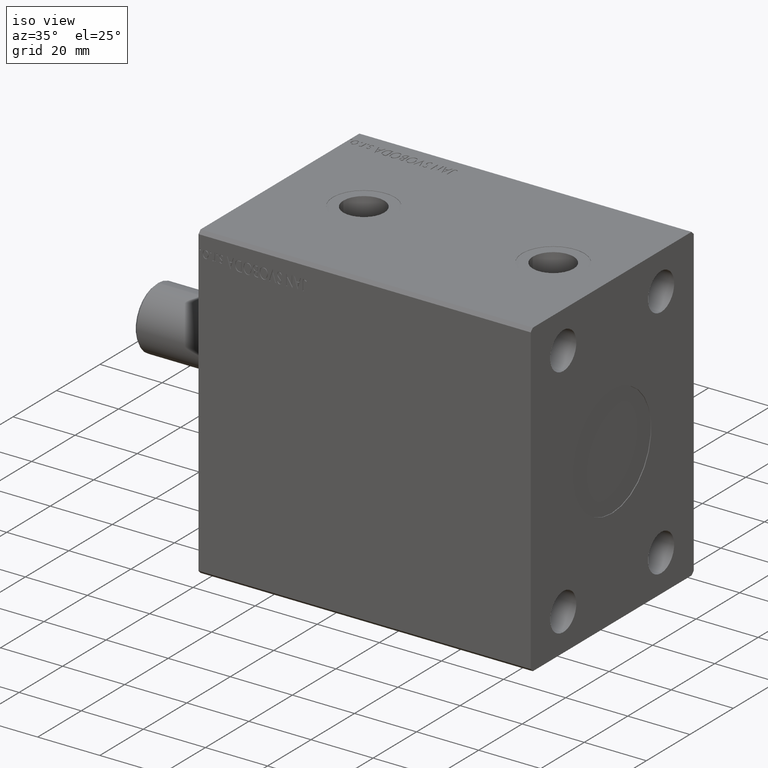
[diagram: clean part render]
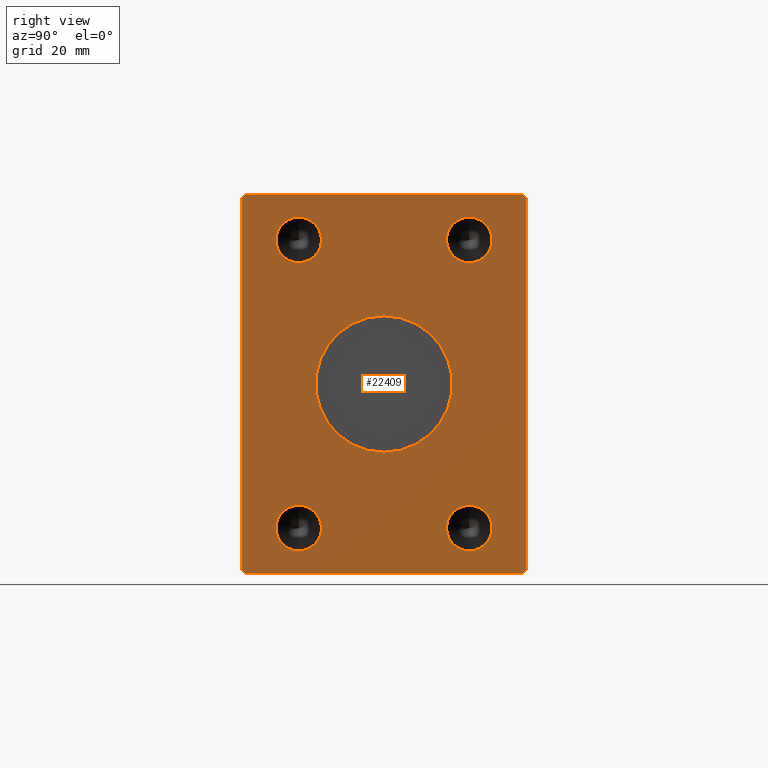
[diagram: tour spotlight — one face highlighted and labeled with its STEP entity id]
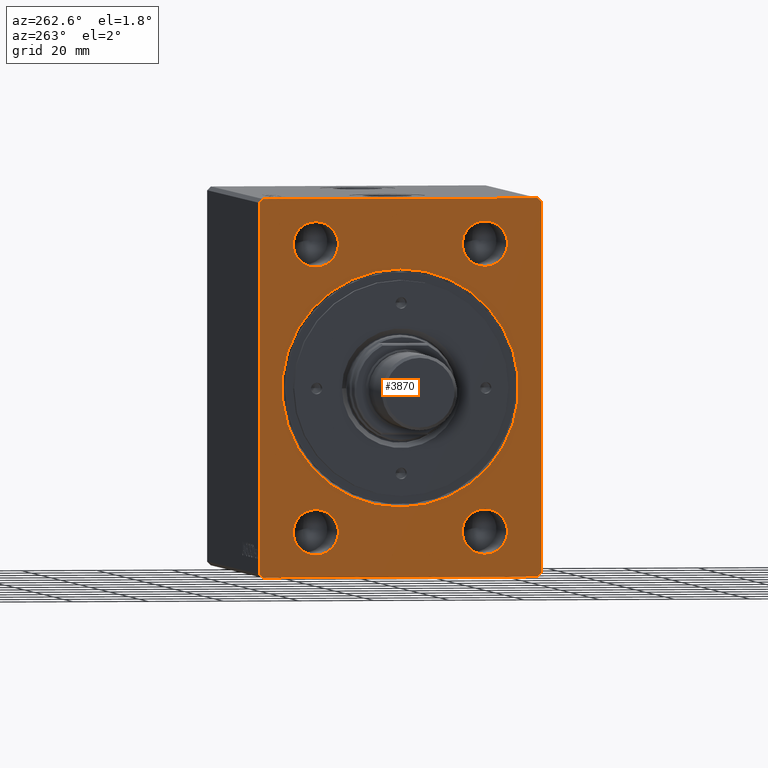
[diagram: tour spotlight — one face highlighted and labeled with its STEP entity id]
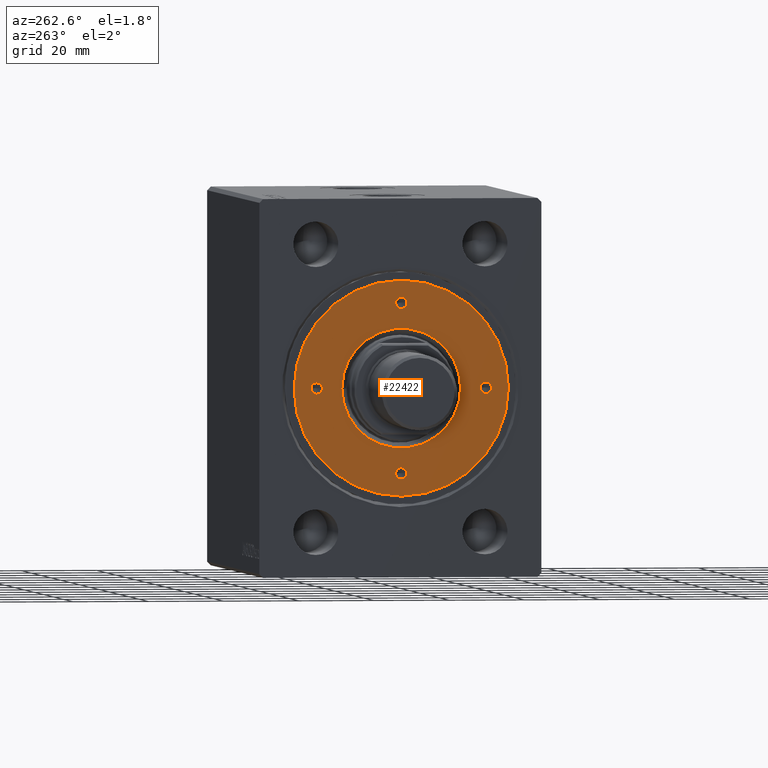
[diagram: tour spotlight — one face highlighted and labeled with its STEP entity id]
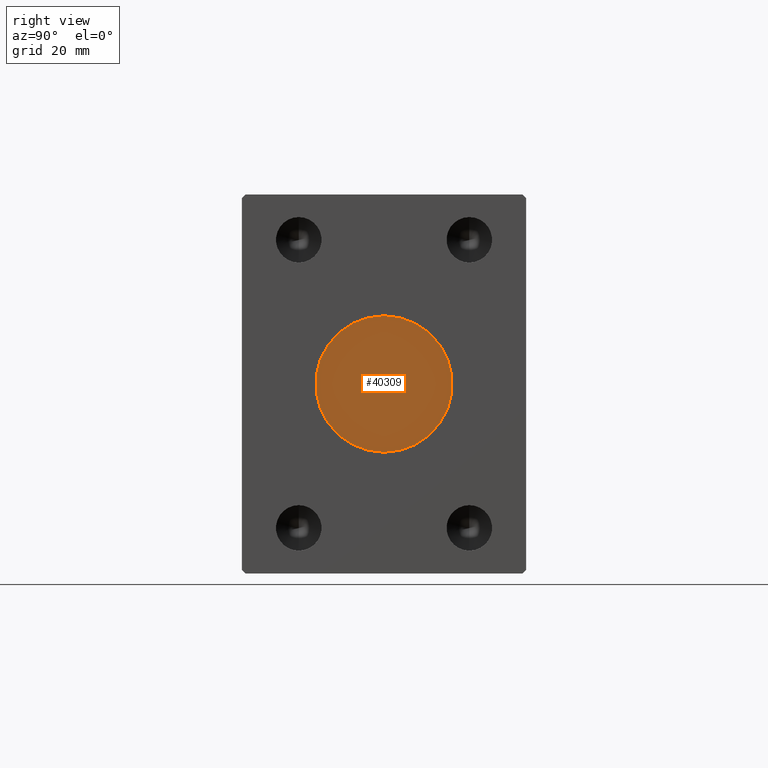
[diagram: tour spotlight — one face highlighted and labeled with its STEP entity id]
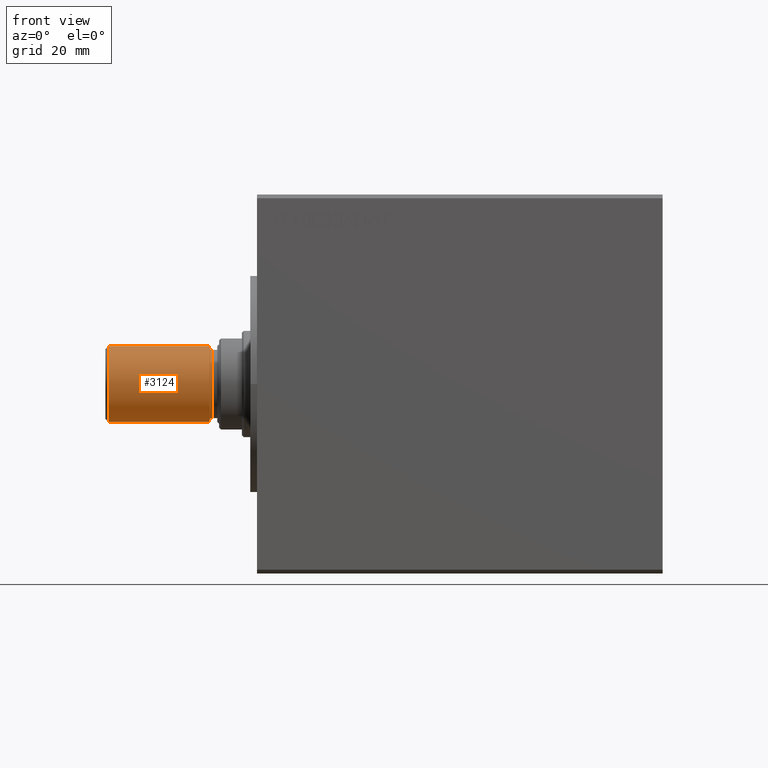
[diagram: tour spotlight — one face highlighted and labeled with its STEP entity id]
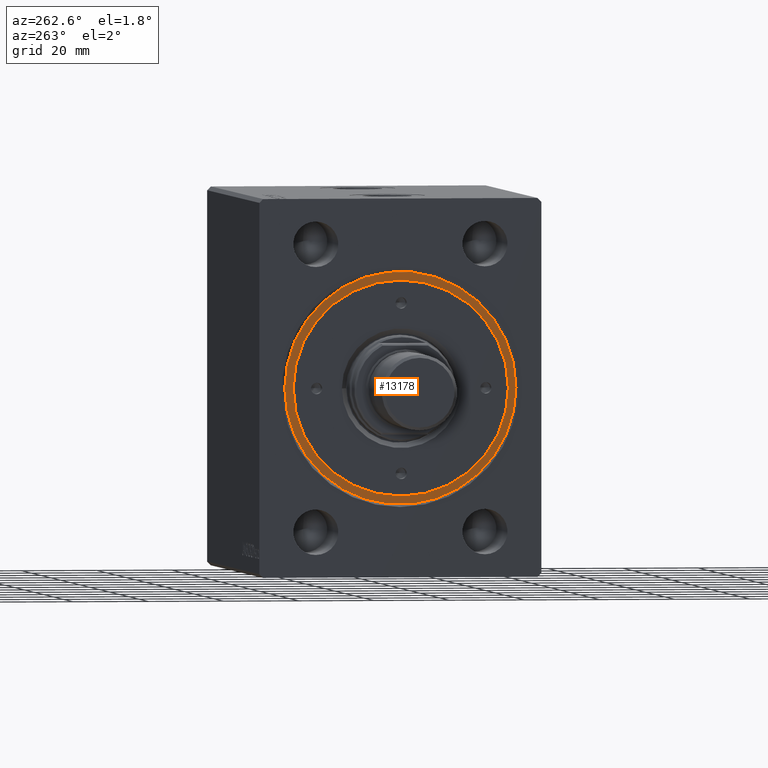
[diagram: tour spotlight — one face highlighted and labeled with its STEP entity id]
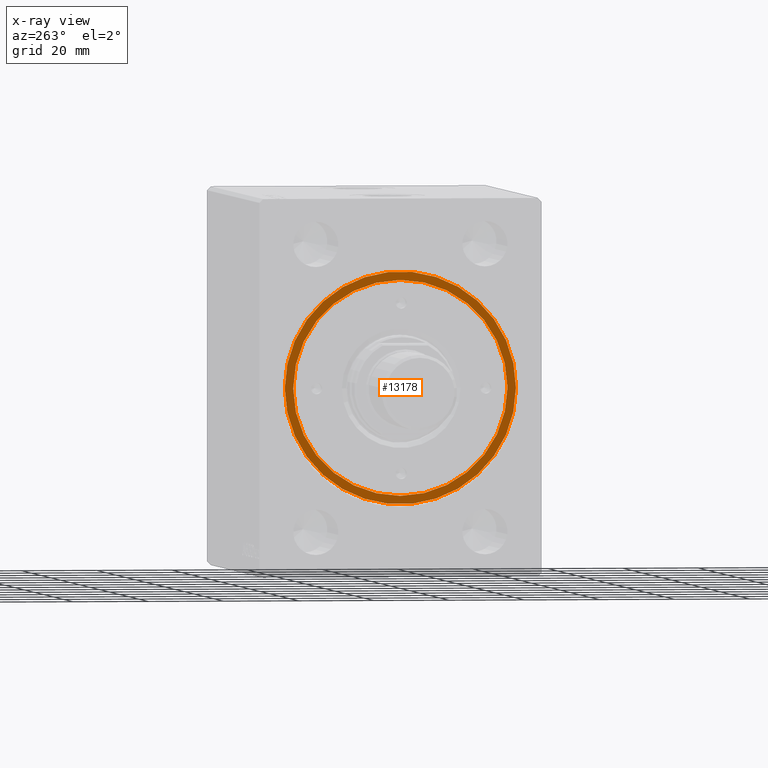
[diagram: x-ray of the same camera — body ghosted, this tour face saturated]
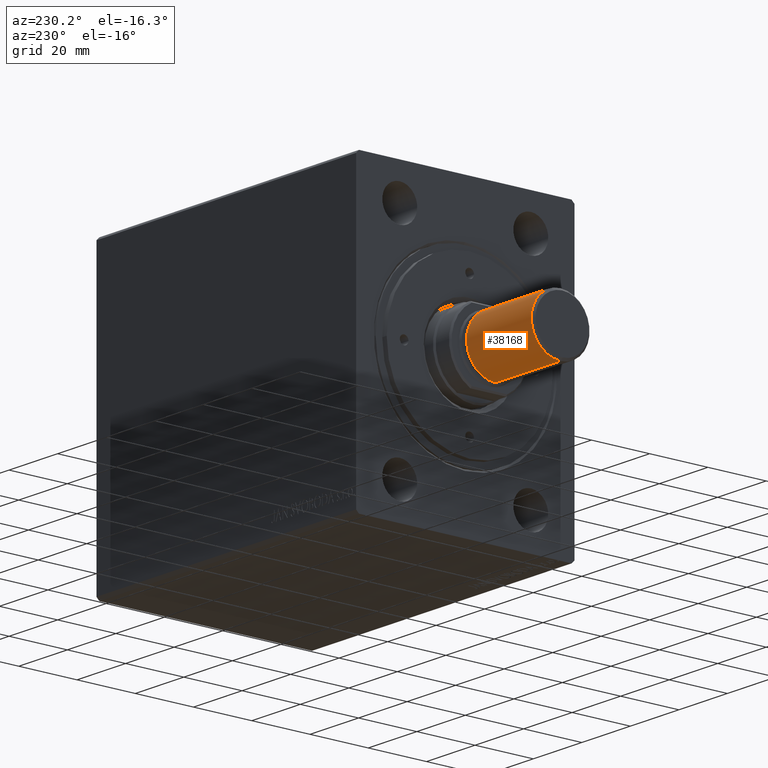
[diagram: tour spotlight — one face highlighted and labeled with its STEP entity id]
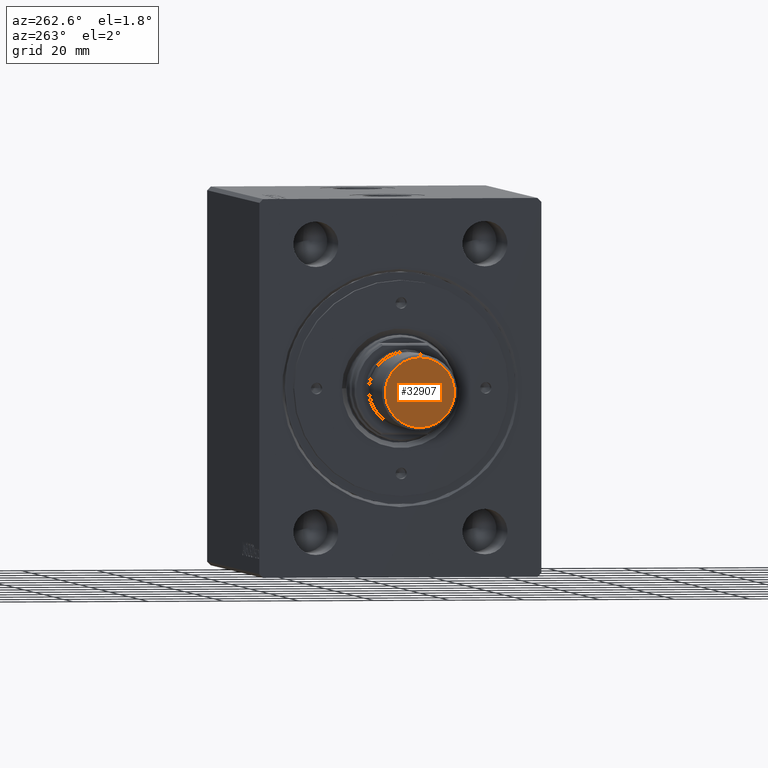
[diagram: tour spotlight — one face highlighted and labeled with its STEP entity id]
A machine part: a face-by-face anatomy tour. The part has 888 B-rep faces; the first image is the clean iso view, then the 8 largest visible faces are spotlighted one at a time (largest first), each with its STEP entity span.

Face 1 — right view, entity #22409. In plain terms, the highlighted planar face has unit normal (1, 0, 0).
Definition (entity closure, byte-faithful):
#233 = VECTOR ( 'NONE', #44023, 1000.000000000000000 ) ;
#415 = CARTESIAN_POINT ( 'NONE',  ( 107.0000000000000000, 36.50000000000000711, 50.00000000000000000 ) ) ;
#465 = DIRECTION ( 'NONE',  ( 1.000000000000000000, -0.000000000000000000, -0.000000000000000000 ) ) ;
#722 = VERTEX_POINT ( 'NONE', #26510 ) ;
#757 = VERTEX_POINT ( 'NONE', #36373 ) ;
#894 = VERTEX_POINT ( 'NONE', #28715 ) ;
#921 = DIRECTION ( 'NONE',  ( 0.000000000000000000, 0.7071067811865500152, -0.7071067811865451302 ) ) ;
#1088 = CARTESIAN_POINT ( 'NONE',  ( 107.0000000000000000, -22.50000000000000000, 44.00000000000000000 ) ) ;
#1919 = FACE_BOUND ( 'NONE', #35371, .T. ) ;
#2097 = ORIENTED_EDGE ( 'NONE', *, *, #19135, .T. ) ;
#2329 = AXIS2_PLACEMENT_3D ( 'NONE', #27916, #465, #14204 ) ;
#2408 = CIRCLE ( 'NONE', #3799, 5.999999999999998224 ) ;
#2622 = LINE ( 'NONE', #6221, #4230 ) ;
#2932 = EDGE_CURVE ( 'NONE', #11386, #31895, #17929, .T. ) ;
#3132 = EDGE_CURVE ( 'NONE', #24050, #40929, #33174, .T. ) ;
#3431 = DIRECTION ( 'NONE',  ( 1.000000000000000000, -0.000000000000000000, -0.000000000000000000 ) ) ;
#3610 = EDGE_CURVE ( 'NONE', #37678, #40530, #8782, .T. ) ;
#3799 = AXIS2_PLACEMENT_3D ( 'NONE', #20855, #3973, #41072 ) ;
#3973 = DIRECTION ( 'NONE',  ( 1.000000000000000000, -0.000000000000000000, -0.000000000000000000 ) ) ;
#4041 = CARTESIAN_POINT ( 'NONE',  ( 107.0000000000000000, 22.50000000000000000, -44.00000000000000000 ) ) ;
#4230 = VECTOR ( 'NONE', #23321, 1000.000000000000114 ) ;
#4252 = LINE ( 'NONE', #415, #14579 ) ;
#4448 = CARTESIAN_POINT ( 'NONE',  ( 107.0000000000000000, 22.50000000000000000, 38.00000000000000000 ) ) ;
#5065 = CIRCLE ( 'NONE', #21567, 18.00000000000000000 ) ;
#5119 = ORIENTED_EDGE ( 'NONE', *, *, #31143, .F. ) ;
#5222 = ORIENTED_EDGE ( 'NONE', *, *, #38686, .T. ) ;
#5301 = FACE_BOUND ( 'NONE', #28327, .T. ) ;
#5410 = EDGE_CURVE ( 'NONE', #757, #11386, #4252, .T. ) ;
#6221 = CARTESIAN_POINT ( 'NONE',  ( 107.0000000000000000, 36.50000000000000711, -50.00000000000000000 ) ) ;
#6484 = CARTESIAN_POINT ( 'NONE',  ( 107.0000000000000000, -36.50000000000000711, -50.00000000000000000 ) ) ;
#6601 = DIRECTION ( 'NONE',  ( 0.000000000000000000, 0.000000000000000000, -1.000000000000000000 ) ) ;
#7128 = EDGE_CURVE ( 'NONE', #43163, #7960, #2408, .T. ) ;
#7178 = PLANE ( 'NONE',  #36420 ) ;
#7571 = ORIENTED_EDGE ( 'NONE', *, *, #39393, .F. ) ;
#7634 = ORIENTED_EDGE ( 'NONE', *, *, #16689, .T. ) ;
#7960 = VERTEX_POINT ( 'NONE', #18428 ) ;
#8355 = VECTOR ( 'NONE', #921, 1000.000000000000114 ) ;
#8782 = CIRCLE ( 'NONE', #2329, 5.999999999999998224 ) ;
#9563 = CARTESIAN_POINT ( 'NONE',  ( 107.0000000000000000, 22.50000000000000000, -38.00000000000000000 ) ) ;
#10112 = VERTEX_POINT ( 'NONE', #11211 ) ;
#10384 = CARTESIAN_POINT ( 'NONE',  ( 107.0000000000000000, 22.50000000000000000, 44.00000000000000000 ) ) ;
#10492 = AXIS2_PLACEMENT_3D ( 'NONE', #38811, #39028, #35875 ) ;
#10779 = EDGE_CURVE ( 'NONE', #40929, #24050, #23210, .T. ) ;
#11211 = CARTESIAN_POINT ( 'NONE',  ( 107.0000000000000000, 2.204364238465235428E-15, 18.00000000000000000 ) ) ;
#11240 = EDGE_LOOP ( 'NONE', ( #19212, #15254 ) ) ;
#11315 = CARTESIAN_POINT ( 'NONE',  ( 107.0000000000000000, 36.50000000000000711, -50.00000000000000000 ) ) ;
#11386 = VERTEX_POINT ( 'NONE', #30639 ) ;
#11985 = EDGE_CURVE ( 'NONE', #25443, #40032, #41085, .T. ) ;
#12121 = CARTESIAN_POINT ( 'NONE',  ( 107.0000000000000000, 37.50000000000000711, 49.00000000000000000 ) ) ;
#12686 = CARTESIAN_POINT ( 'NONE',  ( 107.0000000000000000, 0.000000000000000000, 0.000000000000000000 ) ) ;
#13060 = ORIENTED_EDGE ( 'NONE', *, *, #11985, .T. ) ;
#14204 = DIRECTION ( 'NONE',  ( 0.000000000000000000, 0.000000000000000000, -1.000000000000000000 ) ) ;
#14579 = VECTOR ( 'NONE', #20683, 1000.000000000000000 ) ;
#14822 = AXIS2_PLACEMENT_3D ( 'NONE', #4448, #34793, #18188 ) ;
#15254 = ORIENTED_EDGE ( 'NONE', *, *, #31776, .F. ) ;
#15308 = CARTESIAN_POINT ( 'NONE',  ( 107.0000000000000000, 22.50000000000000000, -38.00000000000000000 ) ) ;
#15764 = EDGE_LOOP ( 'NONE', ( #20797, #34635, #26054, #7634, #2097, #13060, #40583, #5222 ) ) ;
#15968 = AXIS2_PLACEMENT_3D ( 'NONE', #9563, #27313, #33594 ) ;
#16337 = DIRECTION ( 'NONE',  ( 1.000000000000000000, 0.000000000000000000, 0.000000000000000000 ) ) ;
#16378 = VERTEX_POINT ( 'NONE', #32183 ) ;
#16555 = ORIENTED_EDGE ( 'NONE', *, *, #17112, .F. ) ;
#16689 = EDGE_CURVE ( 'NONE', #31895, #16378, #18430, .T. ) ;
#16956 = DIRECTION ( 'NONE',  ( 0.000000000000000000, 0.000000000000000000, -1.000000000000000000 ) ) ;
#17112 = EDGE_CURVE ( 'NONE', #7960, #43163, #33447, .T. ) ;
#17929 = LINE ( 'NONE', #41500, #33873 ) ;
#17989 = ORIENTED_EDGE ( 'NONE', *, *, #7128, .F. ) ;
#18183 = CARTESIAN_POINT ( 'NONE',  ( 107.0000000000000000, -22.50000000000000000, -38.00000000000000711 ) ) ;
#18188 = DIRECTION ( 'NONE',  ( 0.000000000000000000, 0.000000000000000000, -1.000000000000000000 ) ) ;
#18229 = CARTESIAN_POINT ( 'NONE',  ( 107.0000000000000000, 37.50000000000000711, 49.00000000000000000 ) ) ;
#18420 = LINE ( 'NONE', #42435, #23602 ) ;
#18428 = CARTESIAN_POINT ( 'NONE',  ( 107.0000000000000000, -22.50000000000000000, 32.00000000000000000 ) ) ;
#18430 = LINE ( 'NONE', #19100, #21214 ) ;
#18493 = CARTESIAN_POINT ( 'NONE',  ( 107.0000000000000000, -22.50000000000000000, -32.00000000000000711 ) ) ;
#19100 = CARTESIAN_POINT ( 'NONE',  ( 107.0000000000000000, -37.50000000000001421, 48.99999999999998579 ) ) ;
#19135 = EDGE_CURVE ( 'NONE', #16378, #25443, #44181, .T. ) ;
#19212 = ORIENTED_EDGE ( 'NONE', *, *, #27362, .F. ) ;
#19412 = CARTESIAN_POINT ( 'NONE',  ( 107.0000000000000000, 22.50000000000000000, -32.00000000000000000 ) ) ;
#20115 = CARTESIAN_POINT ( 'NONE',  ( 107.0000000000000000, 0.000000000000000000, 0.000000000000000000 ) ) ;
#20651 = ORIENTED_EDGE ( 'NONE', *, *, #10779, .F. ) ;
#20683 = DIRECTION ( 'NONE',  ( 0.000000000000000000, -1.000000000000000000, -1.901066822988281457E-16 ) ) ;
#20797 = ORIENTED_EDGE ( 'NONE', *, *, #43272, .T. ) ;
#20844 = EDGE_LOOP ( 'NONE', ( #16555, #17989 ) ) ;
#20855 = CARTESIAN_POINT ( 'NONE',  ( 107.0000000000000000, -22.50000000000000000, 38.00000000000000000 ) ) ;
#20902 = CARTESIAN_POINT ( 'NONE',  ( 107.0000000000000000, 0.000000000000000000, 0.000000000000000000 ) ) ;
#21214 = VECTOR ( 'NONE', #38858, 1000.000000000000000 ) ;
#21567 = AXIS2_PLACEMENT_3D ( 'NONE', #12686, #29989, #36267 ) ;
#21674 = ORIENTED_EDGE ( 'NONE', *, *, #3610, .F. ) ;
#22290 = CARTESIAN_POINT ( 'NONE',  ( 107.0000000000000000, -37.50000000000001421, 48.99999999999998579 ) ) ;
#22409 = ADVANCED_FACE ( 'NONE', ( #36086, #5301, #41563, #1919, #25998, #24494 ), #7178, .T. ) ;
#23210 = CIRCLE ( 'NONE', #25348, 5.999999999999998224 ) ;
#23296 = DIRECTION ( 'NONE',  ( 0.000000000000000000, 0.000000000000000000, -1.000000000000000000 ) ) ;
#23321 = DIRECTION ( 'NONE',  ( 0.000000000000000000, 0.7071067811865474617, 0.7071067811865474617 ) ) ;
#23602 = VECTOR ( 'NONE', #35686, 1000.000000000000000 ) ;
#23766 = CIRCLE ( 'NONE', #36634, 5.999999999999998224 ) ;
#24050 = VERTEX_POINT ( 'NONE', #4041 ) ;
#24346 = CARTESIAN_POINT ( 'NONE',  ( 107.0000000000000000, 22.50000000000000000, 38.00000000000000000 ) ) ;
#24372 = AXIS2_PLACEMENT_3D ( 'NONE', #20115, #43706, #6601 ) ;
#24469 = DIRECTION ( 'NONE',  ( 0.000000000000000000, 0.000000000000000000, -1.000000000000000000 ) ) ;
#24494 = FACE_OUTER_BOUND ( 'NONE', #15764, .T. ) ;
#24912 = DIRECTION ( 'NONE',  ( 1.000000000000000000, -0.000000000000000000, -0.000000000000000000 ) ) ;
#25348 = AXIS2_PLACEMENT_3D ( 'NONE', #15308, #42703, #42266 ) ;
#25443 = VERTEX_POINT ( 'NONE', #25721 ) ;
#25721 = CARTESIAN_POINT ( 'NONE',  ( 107.0000000000000000, -36.50000000000000711, -50.00000000000000000 ) ) ;
#25998 = FACE_BOUND ( 'NONE', #20844, .T. ) ;
#26054 = ORIENTED_EDGE ( 'NONE', *, *, #2932, .T. ) ;
#26313 = VERTEX_POINT ( 'NONE', #34228 ) ;
#26510 = CARTESIAN_POINT ( 'NONE',  ( 107.0000000000000000, 22.50000000000000000, 32.00000000000000000 ) ) ;
#27212 = AXIS2_PLACEMENT_3D ( 'NONE', #18183, #24912, #24469 ) ;
#27313 = DIRECTION ( 'NONE',  ( 1.000000000000000000, -0.000000000000000000, -0.000000000000000000 ) ) ;
#27362 = EDGE_CURVE ( 'NONE', #26313, #10112, #41578, .T. ) ;
#27916 = CARTESIAN_POINT ( 'NONE',  ( 107.0000000000000000, -22.50000000000000000, -38.00000000000000711 ) ) ;
#28327 = EDGE_LOOP ( 'NONE', ( #5119, #40344 ) ) ;
#28715 = CARTESIAN_POINT ( 'NONE',  ( 107.0000000000000000, 37.50000000000000711, -49.00000000000000000 ) ) ;
#29078 = ORIENTED_EDGE ( 'NONE', *, *, #3132, .F. ) ;
#29203 = LINE ( 'NONE', #12121, #32909 ) ;
#29989 = DIRECTION ( 'NONE',  ( 1.000000000000000000, 0.000000000000000000, 0.000000000000000000 ) ) ;
#30359 = VERTEX_POINT ( 'NONE', #18229 ) ;
#30639 = CARTESIAN_POINT ( 'NONE',  ( 107.0000000000000000, -36.50000000000001421, 49.99999999999998579 ) ) ;
#31143 = EDGE_CURVE ( 'NONE', #722, #41182, #23766, .T. ) ;
#31609 = DIRECTION ( 'NONE',  ( 0.000000000000000000, -0.7071067811865474617, -0.7071067811865474617 ) ) ;
#31776 = EDGE_CURVE ( 'NONE', #10112, #26313, #5065, .T. ) ;
#31895 = VERTEX_POINT ( 'NONE', #22290 ) ;
#32183 = CARTESIAN_POINT ( 'NONE',  ( 107.0000000000000000, -37.50000000000001421, -49.00000000000000000 ) ) ;
#32206 = CIRCLE ( 'NONE', #27212, 5.999999999999998224 ) ;
#32909 = VECTOR ( 'NONE', #36154, 1000.000000000000114 ) ;
#33174 = CIRCLE ( 'NONE', #15968, 5.999999999999998224 ) ;
#33447 = CIRCLE ( 'NONE', #10492, 5.999999999999998224 ) ;
#33594 = DIRECTION ( 'NONE',  ( 0.000000000000000000, 0.000000000000000000, -1.000000000000000000 ) ) ;
#33873 = VECTOR ( 'NONE', #31609, 1000.000000000000114 ) ;
#34179 = EDGE_CURVE ( 'NONE', #41182, #722, #34194, .T. ) ;
#34194 = CIRCLE ( 'NONE', #14822, 5.999999999999998224 ) ;
#34228 = CARTESIAN_POINT ( 'NONE',  ( 107.0000000000000000, 0.000000000000000000, -18.00000000000000000 ) ) ;
#34635 = ORIENTED_EDGE ( 'NONE', *, *, #5410, .T. ) ;
#34793 = DIRECTION ( 'NONE',  ( 1.000000000000000000, -0.000000000000000000, -0.000000000000000000 ) ) ;
#35371 = EDGE_LOOP ( 'NONE', ( #29078, #20651 ) ) ;
#35686 = DIRECTION ( 'NONE',  ( 0.000000000000000000, 0.000000000000000000, 1.000000000000000000 ) ) ;
#35875 = DIRECTION ( 'NONE',  ( 0.000000000000000000, 0.000000000000000000, -1.000000000000000000 ) ) ;
#36086 = FACE_BOUND ( 'NONE', #11240, .T. ) ;
#36154 = DIRECTION ( 'NONE',  ( 0.000000000000000000, -0.7071067811865474617, 0.7071067811865474617 ) ) ;
#36267 = DIRECTION ( 'NONE',  ( 0.000000000000000000, 0.000000000000000000, -1.000000000000000000 ) ) ;
#36373 = CARTESIAN_POINT ( 'NONE',  ( 107.0000000000000000, 36.50000000000000711, 50.00000000000000000 ) ) ;
#36420 = AXIS2_PLACEMENT_3D ( 'NONE', #20902, #16337, #23296 ) ;
#36634 = AXIS2_PLACEMENT_3D ( 'NONE', #24346, #3431, #16956 ) ;
#37678 = VERTEX_POINT ( 'NONE', #18493 ) ;
#38686 = EDGE_CURVE ( 'NONE', #894, #30359, #18420, .T. ) ;
#38811 = CARTESIAN_POINT ( 'NONE',  ( 107.0000000000000000, -22.50000000000000000, 38.00000000000000000 ) ) ;
#38858 = DIRECTION ( 'NONE',  ( 0.000000000000000000, 0.000000000000000000, -1.000000000000000000 ) ) ;
#39028 = DIRECTION ( 'NONE',  ( 1.000000000000000000, -0.000000000000000000, -0.000000000000000000 ) ) ;
#39393 = EDGE_CURVE ( 'NONE', #40530, #37678, #32206, .T. ) ;
#39528 = EDGE_LOOP ( 'NONE', ( #7571, #21674 ) ) ;
#39645 = EDGE_CURVE ( 'NONE', #40032, #894, #2622, .T. ) ;
#40032 = VERTEX_POINT ( 'NONE', #11315 ) ;
#40344 = ORIENTED_EDGE ( 'NONE', *, *, #34179, .F. ) ;
#40530 = VERTEX_POINT ( 'NONE', #41054 ) ;
#40583 = ORIENTED_EDGE ( 'NONE', *, *, #39645, .T. ) ;
#40805 = CARTESIAN_POINT ( 'NONE',  ( 107.0000000000000000, -37.50000000000001421, -49.00000000000000000 ) ) ;
#40929 = VERTEX_POINT ( 'NONE', #19412 ) ;
#41054 = CARTESIAN_POINT ( 'NONE',  ( 107.0000000000000000, -22.50000000000000000, -44.00000000000000711 ) ) ;
#41072 = DIRECTION ( 'NONE',  ( 0.000000000000000000, 0.000000000000000000, -1.000000000000000000 ) ) ;
#41085 = LINE ( 'NONE', #6484, #233 ) ;
#41182 = VERTEX_POINT ( 'NONE', #10384 ) ;
#41500 = CARTESIAN_POINT ( 'NONE',  ( 107.0000000000000000, -36.50000000000001421, 49.99999999999998579 ) ) ;
#41563 = FACE_BOUND ( 'NONE', #39528, .T. ) ;
#41578 = CIRCLE ( 'NONE', #24372, 18.00000000000000000 ) ;
#42266 = DIRECTION ( 'NONE',  ( 0.000000000000000000, 0.000000000000000000, -1.000000000000000000 ) ) ;
#42435 = CARTESIAN_POINT ( 'NONE',  ( 107.0000000000000000, 37.50000000000000711, -49.00000000000000000 ) ) ;
#42703 = DIRECTION ( 'NONE',  ( 1.000000000000000000, -0.000000000000000000, -0.000000000000000000 ) ) ;
#43163 = VERTEX_POINT ( 'NONE', #1088 ) ;
#43272 = EDGE_CURVE ( 'NONE', #30359, #757, #29203, .T. ) ;
#43706 = DIRECTION ( 'NONE',  ( 1.000000000000000000, 0.000000000000000000, 0.000000000000000000 ) ) ;
#44023 = DIRECTION ( 'NONE',  ( 0.000000000000000000, 1.000000000000000000, 0.000000000000000000 ) ) ;
#44181 = LINE ( 'NONE', #40805, #8355 ) ;

Face 2 — auxiliary view, entity #3870. In plain terms, the highlighted planar face has unit normal (1, 0, 0).
Definition (entity closure, byte-faithful):
#188 = PLANE ( 'NONE',  #36045 ) ;
#251 = CARTESIAN_POINT ( 'NONE',  ( 0.000000000000000000, 3.851514183318427194E-15, -31.45000000000002061 ) ) ;
#404 = CARTESIAN_POINT ( 'NONE',  ( 0.000000000000000000, 0.000000000000000000, 0.000000000000000000 ) ) ;
#519 = DIRECTION ( 'NONE',  ( 0.000000000000000000, 0.000000000000000000, -1.000000000000000000 ) ) ;
#617 = DIRECTION ( 'NONE',  ( 0.000000000000000000, 0.000000000000000000, 1.000000000000000000 ) ) ;
#709 = DIRECTION ( 'NONE',  ( -1.000000000000000000, -0.000000000000000000, -0.000000000000000000 ) ) ;
#1028 = DIRECTION ( 'NONE',  ( 0.000000000000000000, 0.000000000000000000, 1.000000000000000000 ) ) ;
#1223 = CARTESIAN_POINT ( 'NONE',  ( 2.449293598294703949E-16, -22.50000000000000000, -38.00000000000000711 ) ) ;
#1442 = LINE ( 'NONE', #5052, #12125 ) ;
#1594 = CARTESIAN_POINT ( 'NONE',  ( 0.000000000000000000, 37.50000000000000711, -49.00000000000000000 ) ) ;
#1900 = AXIS2_PLACEMENT_3D ( 'NONE', #33250, #43602, #617 ) ;
#1990 = ORIENTED_EDGE ( 'NONE', *, *, #15558, .F. ) ;
#2537 = ORIENTED_EDGE ( 'NONE', *, *, #7580, .F. ) ;
#3208 = DIRECTION ( 'NONE',  ( -1.000000000000000000, -0.000000000000000000, -0.000000000000000000 ) ) ;
#3348 = FACE_BOUND ( 'NONE', #32558, .T. ) ;
#3870 = ADVANCED_FACE ( 'NONE', ( #3348, #34360, #6511, #33927, #30780, #31444 ), #188, .F. ) ;
#4318 = CARTESIAN_POINT ( 'NONE',  ( 2.449293598294703949E-16, -22.50000000000000000, 38.00000000000000000 ) ) ;
#4583 = AXIS2_PLACEMENT_3D ( 'NONE', #31517, #709, #27937 ) ;
#4636 = VERTEX_POINT ( 'NONE', #11870 ) ;
#4780 = ORIENTED_EDGE ( 'NONE', *, *, #40625, .F. ) ;
#5052 = CARTESIAN_POINT ( 'NONE',  ( 0.000000000000000000, -37.50000000000001421, -49.00000000000000000 ) ) ;
#5271 = CARTESIAN_POINT ( 'NONE',  ( 0.000000000000000000, 36.50000000000000711, 50.00000000000000000 ) ) ;
#5913 = VERTEX_POINT ( 'NONE', #251 ) ;
#6407 = ORIENTED_EDGE ( 'NONE', *, *, #20760, .F. ) ;
#6412 = AXIS2_PLACEMENT_3D ( 'NONE', #28462, #31378, #35407 ) ;
#6437 = CARTESIAN_POINT ( 'NONE',  ( 2.449293598294703949E-16, 22.50000000000000000, 38.00000000000000000 ) ) ;
#6471 = EDGE_CURVE ( 'NONE', #22216, #5913, #34674, .T. ) ;
#6511 = FACE_BOUND ( 'NONE', #11882, .T. ) ;
#7010 = AXIS2_PLACEMENT_3D ( 'NONE', #33997, #3208, #24777 ) ;
#7281 = CARTESIAN_POINT ( 'NONE',  ( 0.000000000000000000, 0.000000000000000000, 0.000000000000000000 ) ) ;
#7398 = VECTOR ( 'NONE', #24482, 1000.000000000000114 ) ;
#7576 = DIRECTION ( 'NONE',  ( -1.000000000000000000, -0.000000000000000000, -0.000000000000000000 ) ) ;
#7580 = EDGE_CURVE ( 'NONE', #20962, #25818, #20394, .T. ) ;
#7605 = EDGE_CURVE ( 'NONE', #25818, #20962, #24677, .T. ) ;
#7635 = CARTESIAN_POINT ( 'NONE',  ( 0.000000000000000000, -36.50000000000000711, -50.00000000000000000 ) ) ;
#7708 = DIRECTION ( 'NONE',  ( 0.000000000000000000, 1.000000000000000000, 0.000000000000000000 ) ) ;
#7884 = CARTESIAN_POINT ( 'NONE',  ( 0.000000000000000000, 36.50000000000000711, 50.00000000000000000 ) ) ;
#8153 = CARTESIAN_POINT ( 'NONE',  ( 2.449293598294703949E-16, 22.50000000000000000, -44.00000000000000000 ) ) ;
#8887 = AXIS2_PLACEMENT_3D ( 'NONE', #4318, #31732, #10411 ) ;
#8918 = CIRCLE ( 'NONE', #42617, 5.999999999999998224 ) ;
#8986 = CARTESIAN_POINT ( 'NONE',  ( 2.449293598294703949E-16, 22.50000000000000000, 44.00000000000000000 ) ) ;
#9063 = CARTESIAN_POINT ( 'NONE',  ( 2.449293598294703949E-16, -22.50000000000000000, -44.00000000000000711 ) ) ;
#9442 = EDGE_CURVE ( 'NONE', #5913, #22216, #38338, .T. ) ;
#9914 = VERTEX_POINT ( 'NONE', #29676 ) ;
#10002 = LINE ( 'NONE', #23718, #17599 ) ;
#10016 = EDGE_CURVE ( 'NONE', #43946, #34661, #16872, .T. ) ;
#10411 = DIRECTION ( 'NONE',  ( 0.000000000000000000, 0.000000000000000000, 1.000000000000000000 ) ) ;
#10454 = ORIENTED_EDGE ( 'NONE', *, *, #7605, .F. ) ;
#10477 = CARTESIAN_POINT ( 'NONE',  ( 0.000000000000000000, 37.50000000000000711, 49.00000000000000000 ) ) ;
#11870 = CARTESIAN_POINT ( 'NONE',  ( 2.449293598294703949E-16, -22.50000000000000000, -32.00000000000000711 ) ) ;
#11882 = EDGE_LOOP ( 'NONE', ( #4780, #6407 ) ) ;
#11925 = CARTESIAN_POINT ( 'NONE',  ( 0.000000000000000000, 0.000000000000000000, 31.45000000000002061 ) ) ;
#11990 = ORIENTED_EDGE ( 'NONE', *, *, #27080, .F. ) ;
#12125 = VECTOR ( 'NONE', #29107, 1000.000000000000114 ) ;
#12892 = AXIS2_PLACEMENT_3D ( 'NONE', #6437, #16801, #31147 ) ;
#13221 = EDGE_CURVE ( 'NONE', #21934, #4636, #8918, .T. ) ;
#13392 = VECTOR ( 'NONE', #35986, 1000.000000000000000 ) ;
#13761 = ORIENTED_EDGE ( 'NONE', *, *, #30035, .F. ) ;
#13870 = ORIENTED_EDGE ( 'NONE', *, *, #18125, .F. ) ;
#14373 = DIRECTION ( 'NONE',  ( 0.000000000000000000, 0.000000000000000000, -1.000000000000000000 ) ) ;
#14760 = ORIENTED_EDGE ( 'NONE', *, *, #39725, .F. ) ;
#14923 = DIRECTION ( 'NONE',  ( 0.000000000000000000, 0.000000000000000000, -1.000000000000000000 ) ) ;
#14966 = DIRECTION ( 'NONE',  ( 0.000000000000000000, 0.000000000000000000, 1.000000000000000000 ) ) ;
#15033 = EDGE_LOOP ( 'NONE', ( #43593, #39895 ) ) ;
#15179 = CARTESIAN_POINT ( 'NONE',  ( 0.000000000000000000, -36.50000000000001421, 49.99999999999998579 ) ) ;
#15558 = EDGE_CURVE ( 'NONE', #23344, #9914, #10002, .T. ) ;
#15842 = ORIENTED_EDGE ( 'NONE', *, *, #22984, .F. ) ;
#16181 = EDGE_LOOP ( 'NONE', ( #2537, #10454 ) ) ;
#16403 = ORIENTED_EDGE ( 'NONE', *, *, #40466, .F. ) ;
#16541 = LINE ( 'NONE', #42102, #42883 ) ;
#16617 = VERTEX_POINT ( 'NONE', #7635 ) ;
#16800 = LINE ( 'NONE', #10477, #29868 ) ;
#16801 = DIRECTION ( 'NONE',  ( -1.000000000000000000, -0.000000000000000000, -0.000000000000000000 ) ) ;
#16872 = LINE ( 'NONE', #31440, #7398 ) ;
#17435 = DIRECTION ( 'NONE',  ( 1.000000000000000000, 0.000000000000000000, 0.000000000000000000 ) ) ;
#17506 = ORIENTED_EDGE ( 'NONE', *, *, #9442, .T. ) ;
#17599 = VECTOR ( 'NONE', #44380, 1000.000000000000114 ) ;
#18125 = EDGE_CURVE ( 'NONE', #33442, #39744, #16800, .T. ) ;
#18288 = LINE ( 'NONE', #25453, #30875 ) ;
#18355 = DIRECTION ( 'NONE',  ( -1.000000000000000000, -0.000000000000000000, -0.000000000000000000 ) ) ;
#19313 = VERTEX_POINT ( 'NONE', #38696 ) ;
#20394 = CIRCLE ( 'NONE', #8887, 5.999999999999998224 ) ;
#20760 = EDGE_CURVE ( 'NONE', #40124, #19313, #42109, .T. ) ;
#20962 = VERTEX_POINT ( 'NONE', #26410 ) ;
#21115 = DIRECTION ( 'NONE',  ( 1.000000000000000000, 0.000000000000000000, 0.000000000000000000 ) ) ;
#21273 = CARTESIAN_POINT ( 'NONE',  ( 2.449293598294703949E-16, 22.50000000000000000, 32.00000000000000000 ) ) ;
#21934 = VERTEX_POINT ( 'NONE', #9063 ) ;
#22159 = ORIENTED_EDGE ( 'NONE', *, *, #10016, .F. ) ;
#22216 = VERTEX_POINT ( 'NONE', #11925 ) ;
#22891 = AXIS2_PLACEMENT_3D ( 'NONE', #34987, #7576, #1028 ) ;
#22984 = EDGE_CURVE ( 'NONE', #33901, #34364, #44336, .T. ) ;
#23344 = VERTEX_POINT ( 'NONE', #33007 ) ;
#23718 = CARTESIAN_POINT ( 'NONE',  ( 0.000000000000000000, 36.50000000000000711, -50.00000000000000000 ) ) ;
#24482 = DIRECTION ( 'NONE',  ( 0.000000000000000000, -0.7071067811865474617, -0.7071067811865474617 ) ) ;
#24677 = CIRCLE ( 'NONE', #4583, 5.999999999999998224 ) ;
#24777 = DIRECTION ( 'NONE',  ( 0.000000000000000000, 0.000000000000000000, 1.000000000000000000 ) ) ;
#25028 = CARTESIAN_POINT ( 'NONE',  ( 0.000000000000000000, -37.50000000000001421, -49.00000000000000000 ) ) ;
#25037 = DIRECTION ( 'NONE',  ( 1.000000000000000000, 0.000000000000000000, 0.000000000000000000 ) ) ;
#25062 = CARTESIAN_POINT ( 'NONE',  ( 0.000000000000000000, 37.50000000000000711, 49.00000000000000000 ) ) ;
#25453 = CARTESIAN_POINT ( 'NONE',  ( 0.000000000000000000, -36.50000000000000711, -50.00000000000000000 ) ) ;
#25818 = VERTEX_POINT ( 'NONE', #30742 ) ;
#26410 = CARTESIAN_POINT ( 'NONE',  ( 2.449293598294703949E-16, -22.50000000000000000, 44.00000000000000000 ) ) ;
#26701 = LINE ( 'NONE', #7884, #30105 ) ;
#27080 = EDGE_CURVE ( 'NONE', #34364, #33901, #31548, .T. ) ;
#27125 = DIRECTION ( 'NONE',  ( 0.000000000000000000, -0.7071067811865474617, 0.7071067811865474617 ) ) ;
#27937 = DIRECTION ( 'NONE',  ( 0.000000000000000000, 0.000000000000000000, 1.000000000000000000 ) ) ;
#27961 = CIRCLE ( 'NONE', #6412, 5.999999999999998224 ) ;
#28462 = CARTESIAN_POINT ( 'NONE',  ( 2.449293598294703949E-16, 22.50000000000000000, -38.00000000000000000 ) ) ;
#28537 = EDGE_LOOP ( 'NONE', ( #32448, #17506 ) ) ;
#29107 = DIRECTION ( 'NONE',  ( 0.000000000000000000, 0.7071067811865500152, -0.7071067811865451302 ) ) ;
#29676 = CARTESIAN_POINT ( 'NONE',  ( 0.000000000000000000, 37.50000000000000711, -49.00000000000000000 ) ) ;
#29843 = DIRECTION ( 'NONE',  ( 0.000000000000000000, -1.000000000000000000, -1.901066822988281457E-16 ) ) ;
#29868 = VECTOR ( 'NONE', #27125, 1000.000000000000114 ) ;
#30035 = EDGE_CURVE ( 'NONE', #16617, #23344, #18288, .T. ) ;
#30105 = VECTOR ( 'NONE', #29843, 1000.000000000000000 ) ;
#30392 = AXIS2_PLACEMENT_3D ( 'NONE', #42111, #17435, #41682 ) ;
#30452 = AXIS2_PLACEMENT_3D ( 'NONE', #7281, #25037, #519 ) ;
#30742 = CARTESIAN_POINT ( 'NONE',  ( 2.449293598294703949E-16, -22.50000000000000000, 32.00000000000000000 ) ) ;
#30780 = FACE_BOUND ( 'NONE', #28537, .T. ) ;
#30875 = VECTOR ( 'NONE', #7708, 1000.000000000000000 ) ;
#31147 = DIRECTION ( 'NONE',  ( 0.000000000000000000, 0.000000000000000000, 1.000000000000000000 ) ) ;
#31378 = DIRECTION ( 'NONE',  ( -1.000000000000000000, -0.000000000000000000, -0.000000000000000000 ) ) ;
#31440 = CARTESIAN_POINT ( 'NONE',  ( 0.000000000000000000, -36.50000000000001421, 49.99999999999998579 ) ) ;
#31444 = FACE_OUTER_BOUND ( 'NONE', #42713, .T. ) ;
#31517 = CARTESIAN_POINT ( 'NONE',  ( 2.449293598294703949E-16, -22.50000000000000000, 38.00000000000000000 ) ) ;
#31548 = CIRCLE ( 'NONE', #12892, 5.999999999999998224 ) ;
#31732 = DIRECTION ( 'NONE',  ( -1.000000000000000000, -0.000000000000000000, -0.000000000000000000 ) ) ;
#31928 = EDGE_CURVE ( 'NONE', #9914, #33442, #38926, .T. ) ;
#32448 = ORIENTED_EDGE ( 'NONE', *, *, #6471, .T. ) ;
#32558 = EDGE_LOOP ( 'NONE', ( #15842, #11990 ) ) ;
#33007 = CARTESIAN_POINT ( 'NONE',  ( 0.000000000000000000, 36.50000000000000711, -50.00000000000000000 ) ) ;
#33250 = CARTESIAN_POINT ( 'NONE',  ( 2.449293598294703949E-16, 22.50000000000000000, -38.00000000000000000 ) ) ;
#33442 = VERTEX_POINT ( 'NONE', #25062 ) ;
#33901 = VERTEX_POINT ( 'NONE', #8986 ) ;
#33927 = FACE_BOUND ( 'NONE', #16181, .T. ) ;
#33997 = CARTESIAN_POINT ( 'NONE',  ( 2.449293598294703949E-16, 22.50000000000000000, 38.00000000000000000 ) ) ;
#34360 = FACE_BOUND ( 'NONE', #15033, .T. ) ;
#34364 = VERTEX_POINT ( 'NONE', #21273 ) ;
#34661 = VERTEX_POINT ( 'NONE', #35352 ) ;
#34674 = CIRCLE ( 'NONE', #30392, 31.45000000000002061 ) ;
#34987 = CARTESIAN_POINT ( 'NONE',  ( 2.449293598294703949E-16, -22.50000000000000000, -38.00000000000000711 ) ) ;
#35352 = CARTESIAN_POINT ( 'NONE',  ( 0.000000000000000000, -37.50000000000001421, 48.99999999999998579 ) ) ;
#35407 = DIRECTION ( 'NONE',  ( 0.000000000000000000, 0.000000000000000000, 1.000000000000000000 ) ) ;
#35442 = EDGE_CURVE ( 'NONE', #34661, #40038, #16541, .T. ) ;
#35986 = DIRECTION ( 'NONE',  ( 0.000000000000000000, 0.000000000000000000, 1.000000000000000000 ) ) ;
#36045 = AXIS2_PLACEMENT_3D ( 'NONE', #404, #21115, #14373 ) ;
#38338 = CIRCLE ( 'NONE', #30452, 31.45000000000002061 ) ;
#38696 = CARTESIAN_POINT ( 'NONE',  ( 2.449293598294703949E-16, 22.50000000000000000, -32.00000000000000000 ) ) ;
#38926 = LINE ( 'NONE', #1594, #13392 ) ;
#39725 = EDGE_CURVE ( 'NONE', #40038, #16617, #1442, .T. ) ;
#39744 = VERTEX_POINT ( 'NONE', #5271 ) ;
#39895 = ORIENTED_EDGE ( 'NONE', *, *, #13221, .F. ) ;
#40038 = VERTEX_POINT ( 'NONE', #25028 ) ;
#40124 = VERTEX_POINT ( 'NONE', #8153 ) ;
#40466 = EDGE_CURVE ( 'NONE', #39744, #43946, #26701, .T. ) ;
#40625 = EDGE_CURVE ( 'NONE', #19313, #40124, #27961, .T. ) ;
#41505 = ORIENTED_EDGE ( 'NONE', *, *, #31928, .F. ) ;
#41682 = DIRECTION ( 'NONE',  ( 0.000000000000000000, 0.000000000000000000, -1.000000000000000000 ) ) ;
#42102 = CARTESIAN_POINT ( 'NONE',  ( 0.000000000000000000, -37.50000000000001421, 48.99999999999998579 ) ) ;
#42109 = CIRCLE ( 'NONE', #1900, 5.999999999999998224 ) ;
#42111 = CARTESIAN_POINT ( 'NONE',  ( 0.000000000000000000, 0.000000000000000000, 0.000000000000000000 ) ) ;
#42237 = CIRCLE ( 'NONE', #22891, 5.999999999999998224 ) ;
#42617 = AXIS2_PLACEMENT_3D ( 'NONE', #1223, #18355, #14966 ) ;
#42713 = EDGE_LOOP ( 'NONE', ( #13870, #41505, #1990, #13761, #14760, #42996, #22159, #16403 ) ) ;
#42883 = VECTOR ( 'NONE', #14923, 1000.000000000000000 ) ;
#42996 = ORIENTED_EDGE ( 'NONE', *, *, #35442, .F. ) ;
#43593 = ORIENTED_EDGE ( 'NONE', *, *, #44366, .F. ) ;
#43602 = DIRECTION ( 'NONE',  ( -1.000000000000000000, -0.000000000000000000, -0.000000000000000000 ) ) ;
#43946 = VERTEX_POINT ( 'NONE', #15179 ) ;
#44336 = CIRCLE ( 'NONE', #7010, 5.999999999999998224 ) ;
#44366 = EDGE_CURVE ( 'NONE', #4636, #21934, #42237, .T. ) ;
#44380 = DIRECTION ( 'NONE',  ( 0.000000000000000000, 0.7071067811865474617, 0.7071067811865474617 ) ) ;

Face 3 — auxiliary view, entity #22422. In plain terms, the highlighted planar face has unit normal (-1, 0, 0).
Definition (entity closure, byte-faithful):
#125 = CARTESIAN_POINT ( 'NONE',  ( 22.50000000000000000, 0.000000000000000000, 9.999999999999998224 ) ) ;
#572 = CARTESIAN_POINT ( 'NONE',  ( -21.00000000000000000, 0.000000000000000000, 9.999999999999998224 ) ) ;
#933 = DIRECTION ( 'NONE',  ( -0.000000000000000000, -0.000000000000000000, 1.000000000000000000 ) ) ;
#1964 = AXIS2_PLACEMENT_3D ( 'NONE', #40462, #3358, #13063 ) ;
#1984 = ORIENTED_EDGE ( 'NONE', *, *, #26440, .F. ) ;
#2485 = CIRCLE ( 'NONE', #21834, 1.499999999999997780 ) ;
#2498 = ORIENTED_EDGE ( 'NONE', *, *, #22252, .F. ) ;
#2596 = FACE_BOUND ( 'NONE', #7188, .T. ) ;
#2682 = CIRCLE ( 'NONE', #34982, 1.499999999999996891 ) ;
#2820 = FACE_BOUND ( 'NONE', #39014, .T. ) ;
#2825 = CARTESIAN_POINT ( 'NONE',  ( 0.000000000000000000, 0.000000000000000000, 9.999999999999998224 ) ) ;
#3041 = FACE_BOUND ( 'NONE', #35974, .T. ) ;
#3105 = AXIS2_PLACEMENT_3D ( 'NONE', #20408, #9004, #13438 ) ;
#3358 = DIRECTION ( 'NONE',  ( -0.000000000000000000, -0.000000000000000000, 1.000000000000000000 ) ) ;
#4481 = ORIENTED_EDGE ( 'NONE', *, *, #15370, .T. ) ;
#4726 = VERTEX_POINT ( 'NONE', #19312 ) ;
#4974 = EDGE_CURVE ( 'NONE', #40965, #41165, #10981, .T. ) ;
#5999 = AXIS2_PLACEMENT_3D ( 'NONE', #36827, #43357, #22913 ) ;
#6016 = VERTEX_POINT ( 'NONE', #17162 ) ;
#6060 = DIRECTION ( 'NONE',  ( -0.000000000000000000, -0.000000000000000000, -1.000000000000000000 ) ) ;
#6127 = EDGE_CURVE ( 'NONE', #6016, #11517, #13166, .T. ) ;
#6864 = DIRECTION ( 'NONE',  ( 1.000000000000000000, 0.000000000000000000, 0.000000000000000000 ) ) ;
#6875 = DIRECTION ( 'NONE',  ( 1.000000000000000000, 0.000000000000000000, 0.000000000000000000 ) ) ;
#7188 = EDGE_LOOP ( 'NONE', ( #9579, #2498 ) ) ;
#7974 = VERTEX_POINT ( 'NONE', #19762 ) ;
#8189 = ORIENTED_EDGE ( 'NONE', *, *, #6127, .F. ) ;
#8664 = DIRECTION ( 'NONE',  ( 0.000000000000000000, 0.000000000000000000, 1.000000000000000000 ) ) ;
#8679 = CARTESIAN_POINT ( 'NONE',  ( 0.000000000000000000, 0.000000000000000000, 9.999999999999998224 ) ) ;
#8820 = AXIS2_PLACEMENT_3D ( 'NONE', #27360, #41055, #27140 ) ;
#9004 = DIRECTION ( 'NONE',  ( -0.000000000000000000, -0.000000000000000000, 1.000000000000000000 ) ) ;
#9066 = EDGE_CURVE ( 'NONE', #7974, #30607, #13136, .T. ) ;
#9217 = DIRECTION ( 'NONE',  ( 1.000000000000000000, 0.000000000000000000, 0.000000000000000000 ) ) ;
#9579 = ORIENTED_EDGE ( 'NONE', *, *, #9066, .F. ) ;
#9665 = DIRECTION ( 'NONE',  ( 1.000000000000000000, 0.000000000000000000, 0.000000000000000000 ) ) ;
#10202 = CARTESIAN_POINT ( 'NONE',  ( 21.00000000000000000, 1.836970198721027222E-16, 9.999999999999998224 ) ) ;
#10946 = VERTEX_POINT ( 'NONE', #37514 ) ;
#10981 = CIRCLE ( 'NONE', #40397, 15.79999999999997762 ) ;
#11136 = AXIS2_PLACEMENT_3D ( 'NONE', #44261, #44040, #9217 ) ;
#11517 = VERTEX_POINT ( 'NONE', #11724 ) ;
#11724 = CARTESIAN_POINT ( 'NONE',  ( 1.499999999999996891, 22.50000000000000000, 9.999999999999998224 ) ) ;
#11920 = EDGE_CURVE ( 'NONE', #4726, #28132, #12486, .T. ) ;
#12137 = EDGE_LOOP ( 'NONE', ( #16776, #4481 ) ) ;
#12486 = CIRCLE ( 'NONE', #5999, 1.499999999999997780 ) ;
#13063 = DIRECTION ( 'NONE',  ( 1.000000000000000000, 0.000000000000000000, 0.000000000000000000 ) ) ;
#13136 = CIRCLE ( 'NONE', #8820, 1.499999999999996891 ) ;
#13166 = CIRCLE ( 'NONE', #3105, 1.499999999999996891 ) ;
#13438 = DIRECTION ( 'NONE',  ( 1.000000000000000000, 0.000000000000000000, 0.000000000000000000 ) ) ;
#13485 = ORIENTED_EDGE ( 'NONE', *, *, #14455, .F. ) ;
#14263 = AXIS2_PLACEMENT_3D ( 'NONE', #23091, #41037, #6864 ) ;
#14455 = EDGE_CURVE ( 'NONE', #29958, #10946, #2485, .T. ) ;
#14935 = EDGE_CURVE ( 'NONE', #10946, #29958, #24059, .T. ) ;
#15370 = EDGE_CURVE ( 'NONE', #33599, #21726, #36235, .T. ) ;
#15887 = DIRECTION ( 'NONE',  ( 1.000000000000000000, 0.000000000000000000, 0.000000000000000000 ) ) ;
#16201 = CARTESIAN_POINT ( 'NONE',  ( 0.000000000000000000, 0.000000000000000000, 9.999999999999998224 ) ) ;
#16383 = AXIS2_PLACEMENT_3D ( 'NONE', #29808, #29590, #43515 ) ;
#16776 = ORIENTED_EDGE ( 'NONE', *, *, #19125, .T. ) ;
#17052 = AXIS2_PLACEMENT_3D ( 'NONE', #16201, #6060, #9665 ) ;
#17091 = CIRCLE ( 'NONE', #1964, 1.499999999999996891 ) ;
#17162 = CARTESIAN_POINT ( 'NONE',  ( -1.499999999999996891, 22.50000000000000000, 9.999999999999998224 ) ) ;
#19125 = EDGE_CURVE ( 'NONE', #21726, #33599, #27757, .T. ) ;
#19312 = CARTESIAN_POINT ( 'NONE',  ( -23.99999999999999645, 1.836970198721027222E-16, 9.999999999999998224 ) ) ;
#19484 = DIRECTION ( 'NONE',  ( -0.000000000000000000, -0.000000000000000000, -1.000000000000000000 ) ) ;
#19762 = CARTESIAN_POINT ( 'NONE',  ( 1.499999999999996891, -22.50000000000000000, 9.999999999999998224 ) ) ;
#20147 = FACE_BOUND ( 'NONE', #22436, .T. ) ;
#20172 = DIRECTION ( 'NONE',  ( -0.000000000000000000, -0.000000000000000000, 1.000000000000000000 ) ) ;
#20182 = ORIENTED_EDGE ( 'NONE', *, *, #38797, .F. ) ;
#20408 = CARTESIAN_POINT ( 'NONE',  ( 0.000000000000000000, 22.50000000000000000, 9.999999999999998224 ) ) ;
#21552 = EDGE_CURVE ( 'NONE', #41165, #40965, #30668, .T. ) ;
#21726 = VERTEX_POINT ( 'NONE', #30458 ) ;
#21834 = AXIS2_PLACEMENT_3D ( 'NONE', #125, #20172, #6875 ) ;
#22252 = EDGE_CURVE ( 'NONE', #30607, #7974, #17091, .T. ) ;
#22422 = ADVANCED_FACE ( 'NONE', ( #2820, #30031, #20147, #2596, #3041, #33833 ), #44178, .T. ) ;
#22436 = EDGE_LOOP ( 'NONE', ( #37080, #13485 ) ) ;
#22913 = DIRECTION ( 'NONE',  ( 1.000000000000000000, 0.000000000000000000, 0.000000000000000000 ) ) ;
#23091 = CARTESIAN_POINT ( 'NONE',  ( -22.50000000000000000, 0.000000000000000000, 9.999999999999998224 ) ) ;
#24059 = CIRCLE ( 'NONE', #11136, 1.499999999999997780 ) ;
#26440 = EDGE_CURVE ( 'NONE', #11517, #6016, #2682, .T. ) ;
#27140 = DIRECTION ( 'NONE',  ( 1.000000000000000000, 0.000000000000000000, 0.000000000000000000 ) ) ;
#27360 = CARTESIAN_POINT ( 'NONE',  ( 0.000000000000000000, -22.50000000000000000, 9.999999999999998224 ) ) ;
#27757 = CIRCLE ( 'NONE', #34893, 28.50000000000000000 ) ;
#28132 = VERTEX_POINT ( 'NONE', #572 ) ;
#28349 = CARTESIAN_POINT ( 'NONE',  ( -15.79999999999997407, 1.934941942652814868E-15, 9.999999999999998224 ) ) ;
#28362 = AXIS2_PLACEMENT_3D ( 'NONE', #39447, #8664, #32040 ) ;
#29501 = CARTESIAN_POINT ( 'NONE',  ( 28.50000000000000000, 3.490243377569956456E-15, 9.999999999999998224 ) ) ;
#29590 = DIRECTION ( 'NONE',  ( 0.000000000000000000, 0.000000000000000000, 1.000000000000000000 ) ) ;
#29808 = CARTESIAN_POINT ( 'NONE',  ( 0.000000000000000000, 0.000000000000000000, 9.999999999999998224 ) ) ;
#29854 = ORIENTED_EDGE ( 'NONE', *, *, #4974, .T. ) ;
#29958 = VERTEX_POINT ( 'NONE', #10202 ) ;
#30031 = FACE_BOUND ( 'NONE', #37314, .T. ) ;
#30458 = CARTESIAN_POINT ( 'NONE',  ( -28.50000000000000000, 0.000000000000000000, 9.999999999999998224 ) ) ;
#30607 = VERTEX_POINT ( 'NONE', #40653 ) ;
#30668 = CIRCLE ( 'NONE', #17052, 15.79999999999997762 ) ;
#31519 = DIRECTION ( 'NONE',  ( 1.000000000000000000, 0.000000000000000000, 0.000000000000000000 ) ) ;
#31745 = CARTESIAN_POINT ( 'NONE',  ( 0.000000000000000000, 22.50000000000000000, 9.999999999999998224 ) ) ;
#31960 = DIRECTION ( 'NONE',  ( 1.000000000000000000, 0.000000000000000000, 0.000000000000000000 ) ) ;
#32040 = DIRECTION ( 'NONE',  ( 1.000000000000000000, 0.000000000000000000, 0.000000000000000000 ) ) ;
#33094 = ORIENTED_EDGE ( 'NONE', *, *, #11920, .F. ) ;
#33599 = VERTEX_POINT ( 'NONE', #29501 ) ;
#33624 = CIRCLE ( 'NONE', #14263, 1.499999999999997780 ) ;
#33833 = FACE_OUTER_BOUND ( 'NONE', #12137, .T. ) ;
#34893 = AXIS2_PLACEMENT_3D ( 'NONE', #2825, #43960, #31519 ) ;
#34982 = AXIS2_PLACEMENT_3D ( 'NONE', #31745, #933, #31960 ) ;
#35566 = CARTESIAN_POINT ( 'NONE',  ( 15.79999999999997407, 0.000000000000000000, 9.999999999999998224 ) ) ;
#35974 = EDGE_LOOP ( 'NONE', ( #29854, #43068 ) ) ;
#36235 = CIRCLE ( 'NONE', #28362, 28.50000000000000000 ) ;
#36827 = CARTESIAN_POINT ( 'NONE',  ( -22.50000000000000000, 0.000000000000000000, 9.999999999999998224 ) ) ;
#37080 = ORIENTED_EDGE ( 'NONE', *, *, #14935, .F. ) ;
#37314 = EDGE_LOOP ( 'NONE', ( #1984, #8189 ) ) ;
#37514 = CARTESIAN_POINT ( 'NONE',  ( 23.99999999999999645, 0.000000000000000000, 9.999999999999998224 ) ) ;
#38797 = EDGE_CURVE ( 'NONE', #28132, #4726, #33624, .T. ) ;
#39014 = EDGE_LOOP ( 'NONE', ( #20182, #33094 ) ) ;
#39447 = CARTESIAN_POINT ( 'NONE',  ( 0.000000000000000000, 0.000000000000000000, 9.999999999999998224 ) ) ;
#40397 = AXIS2_PLACEMENT_3D ( 'NONE', #8679, #19484, #15887 ) ;
#40462 = CARTESIAN_POINT ( 'NONE',  ( 0.000000000000000000, -22.50000000000000000, 9.999999999999998224 ) ) ;
#40653 = CARTESIAN_POINT ( 'NONE',  ( -1.499999999999996891, -22.50000000000000000, 9.999999999999998224 ) ) ;
#40965 = VERTEX_POINT ( 'NONE', #35566 ) ;
#41037 = DIRECTION ( 'NONE',  ( -0.000000000000000000, -0.000000000000000000, 1.000000000000000000 ) ) ;
#41055 = DIRECTION ( 'NONE',  ( -0.000000000000000000, -0.000000000000000000, 1.000000000000000000 ) ) ;
#41165 = VERTEX_POINT ( 'NONE', #28349 ) ;
#43068 = ORIENTED_EDGE ( 'NONE', *, *, #21552, .T. ) ;
#43357 = DIRECTION ( 'NONE',  ( -0.000000000000000000, -0.000000000000000000, 1.000000000000000000 ) ) ;
#43515 = DIRECTION ( 'NONE',  ( 1.000000000000000000, 0.000000000000000000, -0.000000000000000000 ) ) ;
#43960 = DIRECTION ( 'NONE',  ( 0.000000000000000000, 0.000000000000000000, 1.000000000000000000 ) ) ;
#44040 = DIRECTION ( 'NONE',  ( -0.000000000000000000, -0.000000000000000000, 1.000000000000000000 ) ) ;
#44178 = PLANE ( 'NONE',  #16383 ) ;
#44261 = CARTESIAN_POINT ( 'NONE',  ( 22.50000000000000000, 0.000000000000000000, 9.999999999999998224 ) ) ;

Face 4 — right view, entity #40309. In plain terms, the highlighted planar face has unit normal (1, 0, 0).
Definition (entity closure, byte-faithful):
#4000 = CARTESIAN_POINT ( 'NONE',  ( 106.7999999999999972, 0.000000000000000000, 0.000000000000000000 ) ) ;
#10013 = ORIENTED_EDGE ( 'NONE', *, *, #34183, .T. ) ;
#10651 = CIRCLE ( 'NONE', #15663, 18.00000000000000000 ) ;
#11080 = CARTESIAN_POINT ( 'NONE',  ( 106.7999999999999972, 0.000000000000000000, 0.000000000000000000 ) ) ;
#12717 = AXIS2_PLACEMENT_3D ( 'NONE', #4000, #22879, #29165 ) ;
#13774 = EDGE_LOOP ( 'NONE', ( #17045, #10013 ) ) ;
#15605 = CIRCLE ( 'NONE', #12717, 18.00000000000000000 ) ;
#15663 = AXIS2_PLACEMENT_3D ( 'NONE', #11080, #35756, #25233 ) ;
#17045 = ORIENTED_EDGE ( 'NONE', *, *, #23885, .T. ) ;
#17143 = PLANE ( 'NONE',  #22163 ) ;
#22163 = AXIS2_PLACEMENT_3D ( 'NONE', #31487, #34186, #28124 ) ;
#22879 = DIRECTION ( 'NONE',  ( 1.000000000000000000, 0.000000000000000000, 0.000000000000000000 ) ) ;
#23885 = EDGE_CURVE ( 'NONE', #32990, #41460, #10651, .T. ) ;
#25233 = DIRECTION ( 'NONE',  ( 0.000000000000000000, 0.000000000000000000, -1.000000000000000000 ) ) ;
#28124 = DIRECTION ( 'NONE',  ( 0.000000000000000000, 0.000000000000000000, -1.000000000000000000 ) ) ;
#29165 = DIRECTION ( 'NONE',  ( 0.000000000000000000, 0.000000000000000000, -1.000000000000000000 ) ) ;
#29605 = CARTESIAN_POINT ( 'NONE',  ( 106.7999999999999972, 2.204364238465235428E-15, 18.00000000000000000 ) ) ;
#31487 = CARTESIAN_POINT ( 'NONE',  ( 106.7999999999999972, 0.000000000000000000, 0.000000000000000000 ) ) ;
#32990 = VERTEX_POINT ( 'NONE', #42465 ) ;
#34183 = EDGE_CURVE ( 'NONE', #41460, #32990, #15605, .T. ) ;
#34186 = DIRECTION ( 'NONE',  ( 1.000000000000000000, 0.000000000000000000, 0.000000000000000000 ) ) ;
#35756 = DIRECTION ( 'NONE',  ( 1.000000000000000000, 0.000000000000000000, 0.000000000000000000 ) ) ;
#40309 = ADVANCED_FACE ( 'NONE', ( #41602 ), #17143, .T. ) ;
#41460 = VERTEX_POINT ( 'NONE', #29605 ) ;
#41602 = FACE_OUTER_BOUND ( 'NONE', #13774, .T. ) ;
#42465 = CARTESIAN_POINT ( 'NONE',  ( 106.7999999999999972, 0.000000000000000000, -18.00000000000000000 ) ) ;

Face 5 — front view, entity #3124. In plain terms, the highlighted cylindrical surface (partial cylindrical patch) has radius 10 mm, axis along (-1, 0, 0).
Definition (entity closure, byte-faithful):
#793 = DIRECTION ( 'NONE',  ( -0.000000000000000000, -0.000000000000000000, -1.000000000000000000 ) ) ;
#1719 = CARTESIAN_POINT ( 'NONE',  ( 10.00000000000000000, 1.224646799147353256E-15, 0.7999999999999986011 ) ) ;
#3124 = ADVANCED_FACE ( 'NONE', ( #15421 ), #12036, .T. ) ;
#3202 = ORIENTED_EDGE ( 'NONE', *, *, #21132, .F. ) ;
#5159 = DIRECTION ( 'NONE',  ( -0.000000000000000000, -0.000000000000000000, 1.000000000000000000 ) ) ;
#6422 = VERTEX_POINT ( 'NONE', #17884 ) ;
#8214 = CARTESIAN_POINT ( 'NONE',  ( -10.00000000000000000, 0.000000000000000000, 27.50000000000000000 ) ) ;
#10004 = CARTESIAN_POINT ( 'NONE',  ( 0.000000000000000000, 0.000000000000000000, 27.50000000000000000 ) ) ;
#10675 = ORIENTED_EDGE ( 'NONE', *, *, #34062, .F. ) ;
#11472 = CARTESIAN_POINT ( 'NONE',  ( 0.000000000000000000, 0.000000000000000000, 0.7999999999999986011 ) ) ;
#11807 = LINE ( 'NONE', #8214, #39457 ) ;
#12036 = CYLINDRICAL_SURFACE ( 'NONE', #35307, 10.00000000000000000 ) ;
#12941 = DIRECTION ( 'NONE',  ( -1.000000000000000000, 0.000000000000000000, 0.000000000000000000 ) ) ;
#13435 = EDGE_LOOP ( 'NONE', ( #3202, #10675, #19793, #43118 ) ) ;
#15421 = FACE_OUTER_BOUND ( 'NONE', #13435, .T. ) ;
#15575 = DIRECTION ( 'NONE',  ( -0.000000000000000000, -0.000000000000000000, -1.000000000000000000 ) ) ;
#15805 = CARTESIAN_POINT ( 'NONE',  ( 10.00000000000000000, 1.224646799147353256E-15, 27.50000000000000000 ) ) ;
#15825 = VERTEX_POINT ( 'NONE', #25696 ) ;
#16974 = AXIS2_PLACEMENT_3D ( 'NONE', #11472, #5159, #42687 ) ;
#17884 = CARTESIAN_POINT ( 'NONE',  ( -10.00000000000000000, 0.000000000000000000, 27.50000000000000000 ) ) ;
#19793 = ORIENTED_EDGE ( 'NONE', *, *, #28142, .T. ) ;
#21132 = EDGE_CURVE ( 'NONE', #15825, #30723, #42522, .T. ) ;
#21877 = CARTESIAN_POINT ( 'NONE',  ( -10.00000000000000000, 0.000000000000000000, 0.7999999999999986011 ) ) ;
#23279 = DIRECTION ( 'NONE',  ( -0.000000000000000000, -0.000000000000000000, -1.000000000000000000 ) ) ;
#24170 = AXIS2_PLACEMENT_3D ( 'NONE', #24473, #35234, #32085 ) ;
#24473 = CARTESIAN_POINT ( 'NONE',  ( 0.000000000000000000, 0.000000000000000000, 27.50000000000000000 ) ) ;
#25696 = CARTESIAN_POINT ( 'NONE',  ( 10.00000000000000000, 1.224646799147353256E-15, 27.50000000000000000 ) ) ;
#28142 = EDGE_CURVE ( 'NONE', #6422, #35584, #11807, .T. ) ;
#29172 = CIRCLE ( 'NONE', #16974, 10.00000000000000000 ) ;
#29220 = VECTOR ( 'NONE', #15575, 1000.000000000000000 ) ;
#30723 = VERTEX_POINT ( 'NONE', #1719 ) ;
#32085 = DIRECTION ( 'NONE',  ( 1.000000000000000000, 0.000000000000000000, 0.000000000000000000 ) ) ;
#32892 = EDGE_CURVE ( 'NONE', #35584, #30723, #29172, .T. ) ;
#34062 = EDGE_CURVE ( 'NONE', #6422, #15825, #40681, .T. ) ;
#35234 = DIRECTION ( 'NONE',  ( 0.000000000000000000, 0.000000000000000000, 1.000000000000000000 ) ) ;
#35307 = AXIS2_PLACEMENT_3D ( 'NONE', #10004, #23279, #12941 ) ;
#35584 = VERTEX_POINT ( 'NONE', #21877 ) ;
#39457 = VECTOR ( 'NONE', #793, 1000.000000000000000 ) ;
#40681 = CIRCLE ( 'NONE', #24170, 10.00000000000000000 ) ;
#42522 = LINE ( 'NONE', #15805, #29220 ) ;
#42687 = DIRECTION ( 'NONE',  ( 1.000000000000000000, 0.000000000000000000, 0.000000000000000000 ) ) ;
#43118 = ORIENTED_EDGE ( 'NONE', *, *, #32892, .T. ) ;

Face 6 — auxiliary view, entity #13178. An x-ray twin of the same camera follows (body ghosted, this face saturated) — the face is partly hidden behind the body. In plain terms, the highlighted planar face has unit normal (-1, 0, 0).
Definition (entity closure, byte-faithful):
#1309 = CIRCLE ( 'NONE', #6380, 30.75000000000000355 ) ;
#1446 = DIRECTION ( 'NONE',  ( 0.000000000000000000, 0.000000000000000000, 1.000000000000000000 ) ) ;
#2264 = VERTEX_POINT ( 'NONE', #11584 ) ;
#5509 = VERTEX_POINT ( 'NONE', #33820 ) ;
#6254 = CIRCLE ( 'NONE', #20616, 28.50000000000000000 ) ;
#6380 = AXIS2_PLACEMENT_3D ( 'NONE', #18564, #28011, #18346 ) ;
#6615 = DIRECTION ( 'NONE',  ( 0.000000000000000000, 0.000000000000000000, 1.000000000000000000 ) ) ;
#7464 = AXIS2_PLACEMENT_3D ( 'NONE', #34963, #1446, #7995 ) ;
#7485 = EDGE_CURVE ( 'NONE', #34440, #2264, #32546, .T. ) ;
#7995 = DIRECTION ( 'NONE',  ( 1.000000000000000000, 0.000000000000000000, -0.000000000000000000 ) ) ;
#8441 = EDGE_CURVE ( 'NONE', #5509, #16878, #37519, .T. ) ;
#9768 = CARTESIAN_POINT ( 'NONE',  ( 0.000000000000000000, 0.000000000000000000, 8.199999999999999289 ) ) ;
#11584 = CARTESIAN_POINT ( 'NONE',  ( -28.50000000000000000, 0.000000000000000000, 8.199999999999999289 ) ) ;
#13178 = ADVANCED_FACE ( 'NONE', ( #35403, #41935 ), #39211, .T. ) ;
#14659 = ORIENTED_EDGE ( 'NONE', *, *, #7485, .F. ) ;
#15656 = EDGE_LOOP ( 'NONE', ( #28380, #14659 ) ) ;
#16316 = CARTESIAN_POINT ( 'NONE',  ( 0.000000000000000000, 0.000000000000000000, 8.199999999999999289 ) ) ;
#16878 = VERTEX_POINT ( 'NONE', #33010 ) ;
#17540 = AXIS2_PLACEMENT_3D ( 'NONE', #27274, #37152, #44126 ) ;
#18181 = AXIS2_PLACEMENT_3D ( 'NONE', #9768, #22816, #23485 ) ;
#18346 = DIRECTION ( 'NONE',  ( 1.000000000000000000, 0.000000000000000000, 0.000000000000000000 ) ) ;
#18564 = CARTESIAN_POINT ( 'NONE',  ( 0.000000000000000000, 0.000000000000000000, 8.199999999999999289 ) ) ;
#18575 = CARTESIAN_POINT ( 'NONE',  ( 28.50000000000000000, 3.490243377569956456E-15, 8.199999999999999289 ) ) ;
#20044 = ORIENTED_EDGE ( 'NONE', *, *, #43929, .T. ) ;
#20616 = AXIS2_PLACEMENT_3D ( 'NONE', #16316, #6615, #30232 ) ;
#22816 = DIRECTION ( 'NONE',  ( 0.000000000000000000, 0.000000000000000000, 1.000000000000000000 ) ) ;
#23485 = DIRECTION ( 'NONE',  ( 1.000000000000000000, 0.000000000000000000, 0.000000000000000000 ) ) ;
#27274 = CARTESIAN_POINT ( 'NONE',  ( 0.000000000000000000, 0.000000000000000000, 8.199999999999999289 ) ) ;
#28011 = DIRECTION ( 'NONE',  ( 0.000000000000000000, 0.000000000000000000, 1.000000000000000000 ) ) ;
#28380 = ORIENTED_EDGE ( 'NONE', *, *, #35330, .F. ) ;
#30232 = DIRECTION ( 'NONE',  ( 1.000000000000000000, 0.000000000000000000, 0.000000000000000000 ) ) ;
#32546 = CIRCLE ( 'NONE', #17540, 28.50000000000000000 ) ;
#32608 = ORIENTED_EDGE ( 'NONE', *, *, #8441, .T. ) ;
#33010 = CARTESIAN_POINT ( 'NONE',  ( -30.75000000000000355, 0.000000000000000000, 8.199999999999999289 ) ) ;
#33734 = EDGE_LOOP ( 'NONE', ( #20044, #32608 ) ) ;
#33820 = CARTESIAN_POINT ( 'NONE',  ( 30.75000000000000355, 3.765788907378111328E-15, 8.199999999999999289 ) ) ;
#34440 = VERTEX_POINT ( 'NONE', #18575 ) ;
#34963 = CARTESIAN_POINT ( 'NONE',  ( 0.000000000000000000, 0.000000000000000000, 8.199999999999999289 ) ) ;
#35330 = EDGE_CURVE ( 'NONE', #2264, #34440, #6254, .T. ) ;
#35403 = FACE_BOUND ( 'NONE', #15656, .T. ) ;
#37152 = DIRECTION ( 'NONE',  ( 0.000000000000000000, 0.000000000000000000, 1.000000000000000000 ) ) ;
#37519 = CIRCLE ( 'NONE', #18181, 30.75000000000000355 ) ;
#39211 = PLANE ( 'NONE',  #7464 ) ;
#41935 = FACE_OUTER_BOUND ( 'NONE', #33734, .T. ) ;
#43929 = EDGE_CURVE ( 'NONE', #16878, #5509, #1309, .T. ) ;
#44126 = DIRECTION ( 'NONE',  ( 1.000000000000000000, 0.000000000000000000, 0.000000000000000000 ) ) ;

Face 7 — auxiliary view, entity #38168. In plain terms, the highlighted cylindrical surface (partial cylindrical patch) has radius 10 mm, axis along (-1, 0, 0).
Definition (entity closure, byte-faithful):
#793 = DIRECTION ( 'NONE',  ( -0.000000000000000000, -0.000000000000000000, -1.000000000000000000 ) ) ;
#1719 = CARTESIAN_POINT ( 'NONE',  ( 10.00000000000000000, 1.224646799147353256E-15, 0.7999999999999986011 ) ) ;
#3070 = EDGE_CURVE ( 'NONE', #30723, #35584, #10216, .T. ) ;
#3325 = CYLINDRICAL_SURFACE ( 'NONE', #30043, 10.00000000000000000 ) ;
#3765 = DIRECTION ( 'NONE',  ( -1.000000000000000000, 0.000000000000000000, 0.000000000000000000 ) ) ;
#5805 = ORIENTED_EDGE ( 'NONE', *, *, #43518, .F. ) ;
#5868 = AXIS2_PLACEMENT_3D ( 'NONE', #18582, #11596, #22373 ) ;
#6422 = VERTEX_POINT ( 'NONE', #17884 ) ;
#7238 = EDGE_LOOP ( 'NONE', ( #5805, #33339, #37956, #10719 ) ) ;
#8214 = CARTESIAN_POINT ( 'NONE',  ( -10.00000000000000000, 0.000000000000000000, 27.50000000000000000 ) ) ;
#10216 = CIRCLE ( 'NONE', #5868, 10.00000000000000000 ) ;
#10719 = ORIENTED_EDGE ( 'NONE', *, *, #28142, .F. ) ;
#11596 = DIRECTION ( 'NONE',  ( -0.000000000000000000, -0.000000000000000000, 1.000000000000000000 ) ) ;
#11807 = LINE ( 'NONE', #8214, #39457 ) ;
#15575 = DIRECTION ( 'NONE',  ( -0.000000000000000000, -0.000000000000000000, -1.000000000000000000 ) ) ;
#15805 = CARTESIAN_POINT ( 'NONE',  ( 10.00000000000000000, 1.224646799147353256E-15, 27.50000000000000000 ) ) ;
#15825 = VERTEX_POINT ( 'NONE', #25696 ) ;
#17884 = CARTESIAN_POINT ( 'NONE',  ( -10.00000000000000000, 0.000000000000000000, 27.50000000000000000 ) ) ;
#18582 = CARTESIAN_POINT ( 'NONE',  ( 0.000000000000000000, 0.000000000000000000, 0.7999999999999986011 ) ) ;
#21091 = CARTESIAN_POINT ( 'NONE',  ( 0.000000000000000000, 0.000000000000000000, 27.50000000000000000 ) ) ;
#21132 = EDGE_CURVE ( 'NONE', #15825, #30723, #42522, .T. ) ;
#21877 = CARTESIAN_POINT ( 'NONE',  ( -10.00000000000000000, 0.000000000000000000, 0.7999999999999986011 ) ) ;
#22373 = DIRECTION ( 'NONE',  ( 1.000000000000000000, 0.000000000000000000, 0.000000000000000000 ) ) ;
#23363 = CARTESIAN_POINT ( 'NONE',  ( 0.000000000000000000, 0.000000000000000000, 27.50000000000000000 ) ) ;
#25696 = CARTESIAN_POINT ( 'NONE',  ( 10.00000000000000000, 1.224646799147353256E-15, 27.50000000000000000 ) ) ;
#28142 = EDGE_CURVE ( 'NONE', #6422, #35584, #11807, .T. ) ;
#28623 = CIRCLE ( 'NONE', #41541, 10.00000000000000000 ) ;
#29220 = VECTOR ( 'NONE', #15575, 1000.000000000000000 ) ;
#30043 = AXIS2_PLACEMENT_3D ( 'NONE', #23363, #44024, #3765 ) ;
#30723 = VERTEX_POINT ( 'NONE', #1719 ) ;
#31417 = DIRECTION ( 'NONE',  ( 1.000000000000000000, 0.000000000000000000, 0.000000000000000000 ) ) ;
#33339 = ORIENTED_EDGE ( 'NONE', *, *, #21132, .T. ) ;
#33900 = DIRECTION ( 'NONE',  ( 0.000000000000000000, 0.000000000000000000, 1.000000000000000000 ) ) ;
#34113 = FACE_OUTER_BOUND ( 'NONE', #7238, .T. ) ;
#35584 = VERTEX_POINT ( 'NONE', #21877 ) ;
#37956 = ORIENTED_EDGE ( 'NONE', *, *, #3070, .T. ) ;
#38168 = ADVANCED_FACE ( 'NONE', ( #34113 ), #3325, .T. ) ;
#39457 = VECTOR ( 'NONE', #793, 1000.000000000000000 ) ;
#41541 = AXIS2_PLACEMENT_3D ( 'NONE', #21091, #33900, #31417 ) ;
#42522 = LINE ( 'NONE', #15805, #29220 ) ;
#43518 = EDGE_CURVE ( 'NONE', #15825, #6422, #28623, .T. ) ;
#44024 = DIRECTION ( 'NONE',  ( -0.000000000000000000, -0.000000000000000000, -1.000000000000000000 ) ) ;

Face 8 — auxiliary view, entity #32907. In plain terms, the highlighted planar face has unit normal (1, -0, -0).
Definition (entity closure, byte-faithful):
#1100 = PLANE ( 'NONE',  #5451 ) ;
#3874 = ORIENTED_EDGE ( 'NONE', *, *, #32771, .T. ) ;
#5451 = AXIS2_PLACEMENT_3D ( 'NONE', #25402, #24743, #14412 ) ;
#9710 = DIRECTION ( 'NONE',  ( -0.000000000000000000, -0.000000000000000000, -1.000000000000000000 ) ) ;
#10412 = VERTEX_POINT ( 'NONE', #22097 ) ;
#12819 = CARTESIAN_POINT ( 'NONE',  ( 0.000000000000000000, 0.000000000000000000, 0.000000000000000000 ) ) ;
#13258 = DIRECTION ( 'NONE',  ( -0.000000000000000000, -0.000000000000000000, -1.000000000000000000 ) ) ;
#14412 = DIRECTION ( 'NONE',  ( 1.000000000000000000, 0.000000000000000000, -0.000000000000000000 ) ) ;
#15199 = ORIENTED_EDGE ( 'NONE', *, *, #33124, .T. ) ;
#16259 = CIRCLE ( 'NONE', #21974, 9.199999999999999289 ) ;
#16473 = CARTESIAN_POINT ( 'NONE',  ( 0.000000000000000000, 0.000000000000000000, 0.000000000000000000 ) ) ;
#17531 = EDGE_LOOP ( 'NONE', ( #3874, #15199 ) ) ;
#21974 = AXIS2_PLACEMENT_3D ( 'NONE', #12819, #13258, #41100 ) ;
#22097 = CARTESIAN_POINT ( 'NONE',  ( -9.199999999999999289, 1.175660927181458842E-15, 0.000000000000000000 ) ) ;
#24743 = DIRECTION ( 'NONE',  ( 0.000000000000000000, 0.000000000000000000, 1.000000000000000000 ) ) ;
#25188 = FACE_OUTER_BOUND ( 'NONE', #17531, .T. ) ;
#25402 = CARTESIAN_POINT ( 'NONE',  ( 0.000000000000000000, 0.000000000000000000, 0.000000000000000000 ) ) ;
#25804 = CARTESIAN_POINT ( 'NONE',  ( 9.199999999999999289, 0.000000000000000000, 0.000000000000000000 ) ) ;
#27860 = VERTEX_POINT ( 'NONE', #25804 ) ;
#32771 = EDGE_CURVE ( 'NONE', #27860, #10412, #35601, .T. ) ;
#32907 = ADVANCED_FACE ( 'NONE', ( #25188 ), #1100, .F. ) ;
#33124 = EDGE_CURVE ( 'NONE', #10412, #27860, #16259, .T. ) ;
#35601 = CIRCLE ( 'NONE', #44216, 9.199999999999999289 ) ;
#38989 = DIRECTION ( 'NONE',  ( 1.000000000000000000, 0.000000000000000000, 0.000000000000000000 ) ) ;
#41100 = DIRECTION ( 'NONE',  ( 1.000000000000000000, 0.000000000000000000, 0.000000000000000000 ) ) ;
#44216 = AXIS2_PLACEMENT_3D ( 'NONE', #16473, #9710, #38989 ) ;